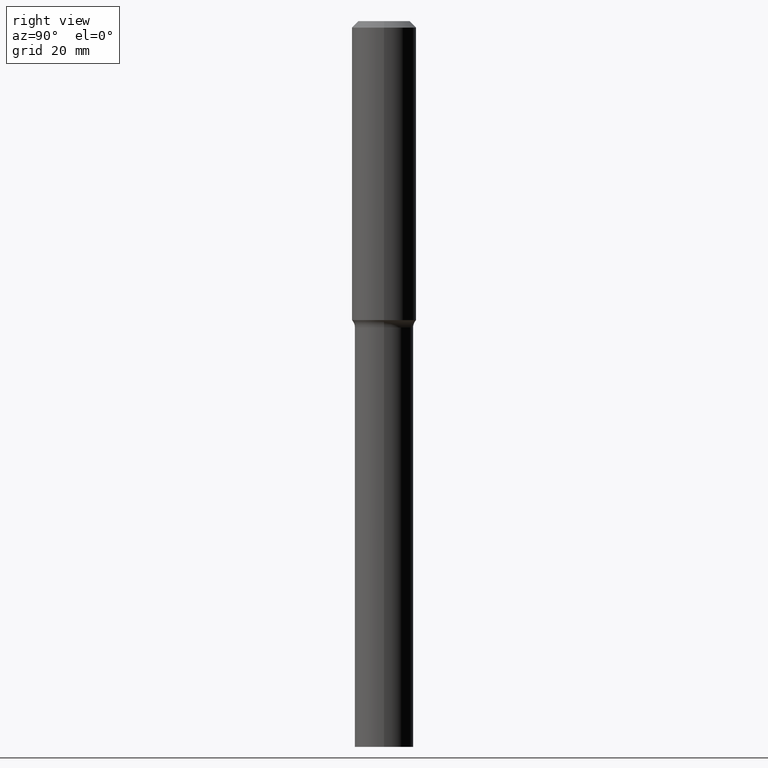
[diagram: clean part render]
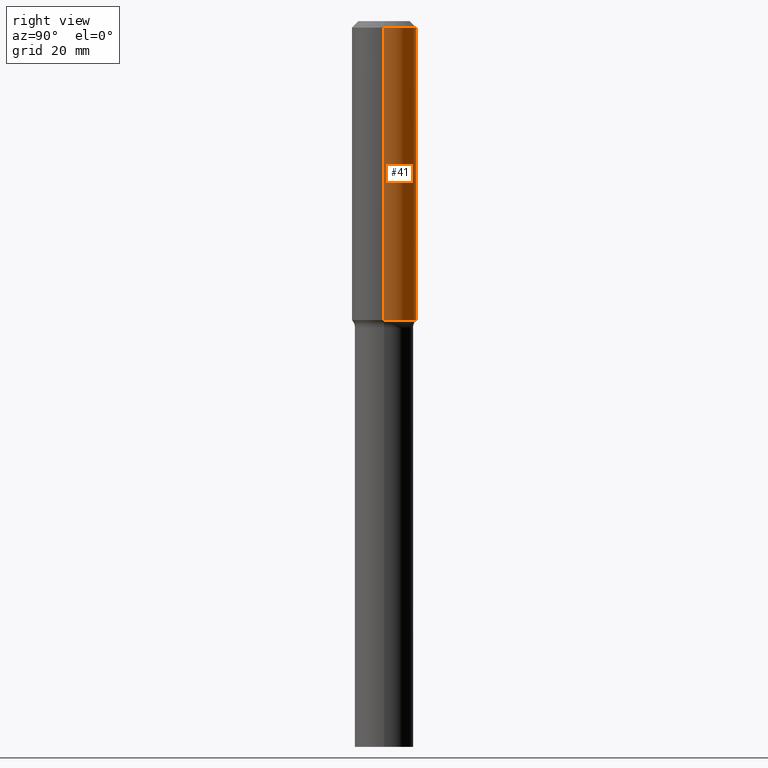
[diagram: same view with one face highlighted and labeled with its STEP entity id]
A machine part, right view. The second image highlights one B-rep face of the part: STEP entity #41.
In plain terms, the highlighted cylindrical surface (edge-blend (fillet) strip) has radius 5.9995 mm, axis along (-0, 0, 1).
Its self-contained STEP definition (entity closure, byte-faithful):
#1 = DIRECTION ( 'NONE',  ( 1.000000000000000000, -6.982962677686266711E-15, 0.000000000000000000 ) ) ;
#5 = CIRCLE ( 'NONE', #112, 0.2362000000000002709 ) ;
#16 = ORIENTED_EDGE ( 'NONE', *, *, #303, .F. ) ;
#41 = ADVANCED_FACE ( 'NONE', ( #235 ), #194, .T. ) ;
#47 = DIRECTION ( 'NONE',  ( -2.445468806185136877E-29, 3.491481338843145188E-15, 1.000000000000000000 ) ) ;
#49 = LINE ( 'NONE', #425, #288 ) ;
#55 = ORIENTED_EDGE ( 'NONE', *, *, #83, .F. ) ;
#83 = EDGE_CURVE ( 'NONE', #279, #431, #231, .T. ) ;
#96 = AXIS2_PLACEMENT_3D ( 'NONE', #277, #512, #155 ) ;
#112 = AXIS2_PLACEMENT_3D ( 'NONE', #273, #353, #152 ) ;
#152 = DIRECTION ( 'NONE',  ( 1.000000000000000000, -6.982962677686269077E-15, 0.000000000000000000 ) ) ;
#155 = DIRECTION ( 'NONE',  ( 1.000000000000000000, -6.982962677686266711E-15, 4.876176775795936353E-29 ) ) ;
#179 = ORIENTED_EDGE ( 'NONE', *, *, #393, .T. ) ;
#181 = EDGE_LOOP ( 'NONE', ( #402, #179, #55, #16 ) ) ;
#186 = VECTOR ( 'NONE', #47, 39.37007874015748143 ) ;
#194 = CYLINDRICAL_SURFACE ( 'NONE', #96, 0.2362000000000001321 ) ;
#216 = CARTESIAN_POINT ( 'NONE',  ( 0.2362000000000002709, -9.293172459752528663E-15, -2.189270379378770226 ) ) ;
#217 = CARTESIAN_POINT ( 'NONE',  ( 0.2361999999999999933, -1.814313362916447440E-15, -0.04724000000000030258 ) ) ;
#225 = CARTESIAN_POINT ( 'NONE',  ( -0.2362000000000001321, 1.678301941865357577E-15, -1.161852468318209457E-29 ) ) ;
#231 = CIRCLE ( 'NONE', #492, 0.2361999999999999933 ) ;
#232 = VERTEX_POINT ( 'NONE', #216 ) ;
#235 = FACE_OUTER_BOUND ( 'NONE', #181, .T. ) ;
#273 = CARTESIAN_POINT ( 'NONE',  ( 5.353792421075882419E-29, -7.643796675283030560E-15, -2.189270379378770226 ) ) ;
#277 = CARTESIAN_POINT ( 'NONE',  ( 0.000000000000000000, 0.000000000000000000, 0.000000000000000000 ) ) ;
#279 = VERTEX_POINT ( 'NONE', #217 ) ;
#288 = VECTOR ( 'NONE', #494, 39.37007874015748143 ) ;
#303 = EDGE_CURVE ( 'NONE', #232, #279, #49, .T. ) ;
#341 = LINE ( 'NONE', #225, #186 ) ;
#348 = CARTESIAN_POINT ( 'NONE',  ( -0.2362000000000002709, -5.965494733417672588E-15, -2.189270379378770226 ) ) ;
#353 = DIRECTION ( 'NONE',  ( -2.445468806185136597E-29, 3.491481338843145583E-15, 1.000000000000000000 ) ) ;
#362 = VERTEX_POINT ( 'NONE', #348 ) ;
#377 = CARTESIAN_POINT ( 'NONE',  ( -0.2361999999999999933, -2.226065184999632371E-15, -0.04724000000000030258 ) ) ;
#393 = EDGE_CURVE ( 'NONE', #362, #431, #341, .T. ) ;
#402 = ORIENTED_EDGE ( 'NONE', *, *, #467, .T. ) ;
#407 = DIRECTION ( 'NONE',  ( -2.445468806185136597E-29, 3.491481338843145583E-15, 1.000000000000000000 ) ) ;
#425 = CARTESIAN_POINT ( 'NONE',  ( 0.2362000000000001321, -1.649375784469497117E-15, 1.151752954443000789E-29 ) ) ;
#431 = VERTEX_POINT ( 'NONE', #377 ) ;
#467 = EDGE_CURVE ( 'NONE', #232, #362, #5, .T. ) ;
#489 = CARTESIAN_POINT ( 'NONE',  ( 1.155239464041865857E-30, -1.649375784469512352E-16, -0.04724000000000030258 ) ) ;
#492 = AXIS2_PLACEMENT_3D ( 'NONE', #489, #407, #1 ) ;
#494 = DIRECTION ( 'NONE',  ( -2.445468806185136877E-29, 3.491481338843145188E-15, 1.000000000000000000 ) ) ;
#512 = DIRECTION ( 'NONE',  ( -2.445468806185136597E-29, 3.491481338843145583E-15, 1.000000000000000000 ) ) ;